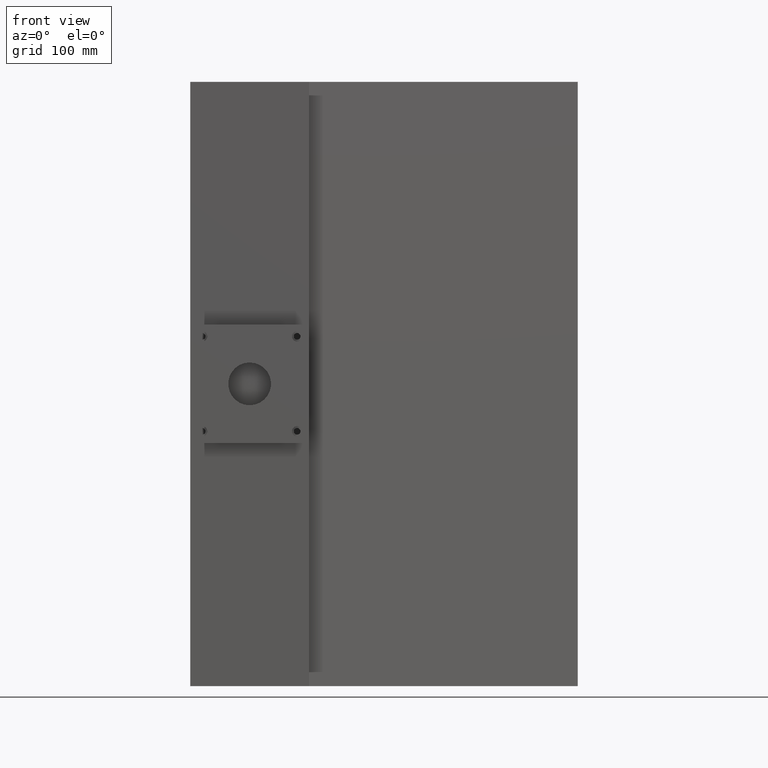
[diagram: clean part render]
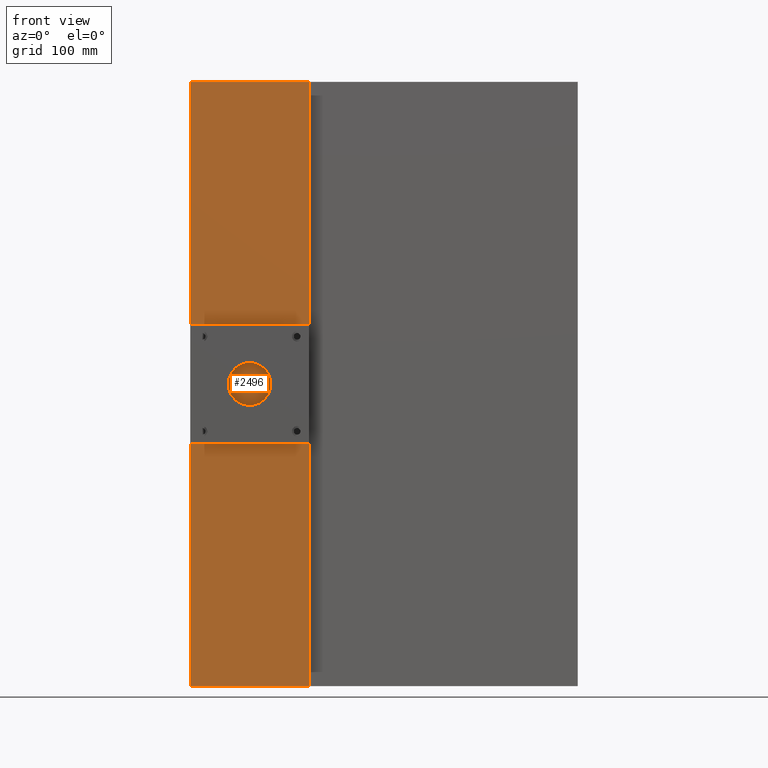
[diagram: same view with one face highlighted and labeled with its STEP entity id]
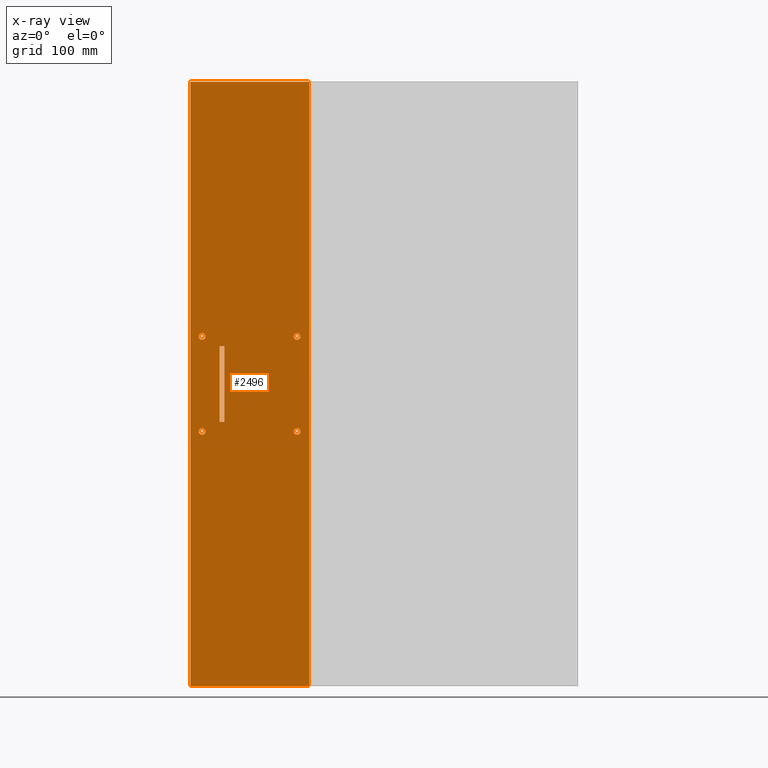
[diagram: x-ray of the same camera — body ghosted, the highlighted face saturated]
A machine part, front view. The second image highlights one B-rep face of the part: STEP entity #2496.
The next image is the same camera in x-ray: the body ghosted, the highlighted face saturated — about 0% of this face is hidden behind the body in this view.
In plain terms, the highlighted planar face has unit normal (0, 1, -0).
Its self-contained STEP definition (entity closure, byte-faithful):
#6 = AXIS2_PLACEMENT_3D ( 'NONE', #1612, #1376, #637 ) ;
#17 = DIRECTION ( 'NONE',  ( -1.000000000000000000, 0.0000000000000000000, 0.0000000000000000000 ) ) ;
#73 = DIRECTION ( 'NONE',  ( 3.118604001756058900E-016, -1.000000000000000000, 0.0000000000000000000 ) ) ;
#80 = ORIENTED_EDGE ( 'NONE', *, *, #2416, .T. ) ;
#114 = FACE_OUTER_BOUND ( 'NONE', #1962, .T. ) ;
#133 = FACE_BOUND ( 'NONE', #1892, .T. ) ;
#139 = FACE_BOUND ( 'NONE', #1931, .T. ) ;
#143 = VECTOR ( 'NONE', #316, 1000.000000000000000 ) ;
#147 = FACE_BOUND ( 'NONE', #2211, .T. ) ;
#179 = LINE ( 'NONE', #180, #143 ) ;
#180 = CARTESIAN_POINT ( 'NONE',  ( 210.6021135167758300, -109.9999999999999900, 39.99999999999997900 ) ) ;
#197 = ORIENTED_EDGE ( 'NONE', *, *, #2592, .T. ) ;
#254 = AXIS2_PLACEMENT_3D ( 'NONE', #539, #73, #571 ) ;
#258 = CARTESIAN_POINT ( 'NONE',  ( 20.88361753920343500, -110.0000000000000000, -318.0000000000000000 ) ) ;
#315 = VERTEX_POINT ( 'NONE', #1596 ) ;
#316 = DIRECTION ( 'NONE',  ( -1.000000000000000000, -0.0000000000000000000, -0.0000000000000000000 ) ) ;
#331 = PLANE ( 'NONE',  #810 ) ;
#339 = AXIS2_PLACEMENT_3D ( 'NONE', #428, #488, #448 ) ;
#350 = AXIS2_PLACEMENT_3D ( 'NONE', #504, #2365, #17 ) ;
#361 = LINE ( 'NONE', #983, #395 ) ;
#384 = AXIS2_PLACEMENT_3D ( 'NONE', #1968, #535, #569 ) ;
#395 = VECTOR ( 'NONE', #1828, 1000.000000000000000 ) ;
#428 = CARTESIAN_POINT ( 'NONE',  ( 8.383617539203399400, -110.0000000000000000, 50.00000000000004300 ) ) ;
#448 = DIRECTION ( 'NONE',  ( 1.000000000000000000, 0.0000000000000000000, 0.0000000000000000000 ) ) ;
#453 = VERTEX_POINT ( 'NONE', #1948 ) ;
#470 = CARTESIAN_POINT ( 'NONE',  ( -95.11638246079657200, -110.0000000000000300, 50.00000000000004300 ) ) ;
#477 = DIRECTION ( 'NONE',  ( 0.0000000000000000000, 1.000000000000000000, -0.0000000000000000000 ) ) ;
#479 = DIRECTION ( 'NONE',  ( -0.0000000000000000000, -0.0000000000000000000, -1.000000000000000000 ) ) ;
#488 = DIRECTION ( 'NONE',  ( 3.118604001756058900E-016, -1.000000000000000000, 0.0000000000000000000 ) ) ;
#497 = DIRECTION ( 'NONE',  ( 3.118604001756058900E-016, -1.000000000000000000, -0.0000000000000000000 ) ) ;
#504 = CARTESIAN_POINT ( 'NONE',  ( 8.383617539203399400, -110.0000000000000000, -50.00000000000004300 ) ) ;
#514 = CARTESIAN_POINT ( 'NONE',  ( 20.88361753920343500, -110.0000000000000000, 318.0000000000000000 ) ) ;
#522 = ORIENTED_EDGE ( 'NONE', *, *, #1652, .F. ) ;
#534 = DIRECTION ( 'NONE',  ( 1.000000000000000000, -4.476705744456276300E-016, -0.0000000000000000000 ) ) ;
#535 = DIRECTION ( 'NONE',  ( 3.118604001756058900E-016, -1.000000000000000000, -0.0000000000000000000 ) ) ;
#539 = CARTESIAN_POINT ( 'NONE',  ( 8.383617539203399400, -110.0000000000000000, 50.00000000000004300 ) ) ;
#554 = CARTESIAN_POINT ( 'NONE',  ( -104.1163824607965600, -110.0000000000000000, 318.0000000000000000 ) ) ;
#569 = DIRECTION ( 'NONE',  ( -1.000000000000000000, 0.0000000000000000000, 0.0000000000000000000 ) ) ;
#571 = DIRECTION ( 'NONE',  ( 1.000000000000000000, 0.0000000000000000000, 0.0000000000000000000 ) ) ;
#602 = VERTEX_POINT ( 'NONE', #2920 ) ;
#609 = AXIS2_PLACEMENT_3D ( 'NONE', #2255, #497, #2804 ) ;
#615 = VERTEX_POINT ( 'NONE', #2421 ) ;
#637 = DIRECTION ( 'NONE',  ( 1.000000000000000000, 0.0000000000000000000, 0.0000000000000000000 ) ) ;
#653 = VERTEX_POINT ( 'NONE', #2558 ) ;
#663 = VERTEX_POINT ( 'NONE', #258 ) ;
#665 = VERTEX_POINT ( 'NONE', #668 ) ;
#668 = CARTESIAN_POINT ( 'NONE',  ( -88.11638246079655800, -110.0000000000000300, 50.00000000000004300 ) ) ;
#671 = ORIENTED_EDGE ( 'NONE', *, *, #2158, .T. ) ;
#677 = LINE ( 'NONE', #2166, #2444 ) ;
#683 = CARTESIAN_POINT ( 'NONE',  ( 20.88361753920343500, -110.0000000000000000, 318.0000000000000000 ) ) ;
#691 = ORIENTED_EDGE ( 'NONE', *, *, #1695, .F. ) ;
#714 = AXIS2_PLACEMENT_3D ( 'NONE', #756, #752, #1059 ) ;
#725 = ORIENTED_EDGE ( 'NONE', *, *, #2491, .F. ) ;
#732 = ORIENTED_EDGE ( 'NONE', *, *, #1252, .F. ) ;
#739 = EDGE_LOOP ( 'NONE', ( #1690, #732 ) ) ;
#752 = DIRECTION ( 'NONE',  ( 3.118604001756058900E-016, -1.000000000000000000, -0.0000000000000000000 ) ) ;
#756 = CARTESIAN_POINT ( 'NONE',  ( -91.61638246079655800, -110.0000000000000300, -50.00000000000004300 ) ) ;
#772 = CARTESIAN_POINT ( 'NONE',  ( -73.11638246079655800, -110.0000000000000100, 318.0000000000000000 ) ) ;
#795 = CIRCLE ( 'NONE', #384, 3.500000000000008400 ) ;
#802 = VERTEX_POINT ( 'NONE', #554 ) ;
#810 = AXIS2_PLACEMENT_3D ( 'NONE', #683, #477, #1081 ) ;
#853 = VERTEX_POINT ( 'NONE', #1012 ) ;
#884 = CARTESIAN_POINT ( 'NONE',  ( 20.88361753920343500, -110.0000000000000000, 318.0000000000000000 ) ) ;
#913 = CARTESIAN_POINT ( 'NONE',  ( -104.1163824607965600, -110.0000000000000000, 318.0000000000000000 ) ) ;
#959 = DIRECTION ( 'NONE',  ( 1.000000000000000000, 0.0000000000000000000, 0.0000000000000000000 ) ) ;
#977 = ORIENTED_EDGE ( 'NONE', *, *, #2181, .F. ) ;
#983 = CARTESIAN_POINT ( 'NONE',  ( -68.11638246079655800, -110.0000000000000000, 318.0000000000000000 ) ) ;
#1012 = CARTESIAN_POINT ( 'NONE',  ( 4.883617539203392300, -110.0000000000000000, 50.00000000000004300 ) ) ;
#1059 = DIRECTION ( 'NONE',  ( -1.000000000000000000, 0.0000000000000000000, 0.0000000000000000000 ) ) ;
#1081 = DIRECTION ( 'NONE',  ( 0.0000000000000000000, 0.0000000000000000000, 1.000000000000000000 ) ) ;
#1181 = ORIENTED_EDGE ( 'NONE', *, *, #1754, .F. ) ;
#1192 = FACE_BOUND ( 'NONE', #739, .T. ) ;
#1195 = CIRCLE ( 'NONE', #6, 3.500000000000003100 ) ;
#1252 = EDGE_CURVE ( 'NONE', #653, #453, #1609, .T. ) ;
#1269 = VERTEX_POINT ( 'NONE', #884 ) ;
#1279 = EDGE_CURVE ( 'NONE', #453, #653, #2283, .T. ) ;
#1310 = CARTESIAN_POINT ( 'NONE',  ( 11.88361753920340800, -110.0000000000000000, 50.00000000000004300 ) ) ;
#1376 = DIRECTION ( 'NONE',  ( 3.118604001756058900E-016, -1.000000000000000000, 0.0000000000000000000 ) ) ;
#1385 = VECTOR ( 'NONE', #2807, 1000.000000000000000 ) ;
#1472 = ORIENTED_EDGE ( 'NONE', *, *, #2777, .F. ) ;
#1477 = VERTEX_POINT ( 'NONE', #1915 ) ;
#1482 = VECTOR ( 'NONE', #2632, 1000.000000000000000 ) ;
#1508 = VERTEX_POINT ( 'NONE', #1537 ) ;
#1537 = CARTESIAN_POINT ( 'NONE',  ( -68.11638246079654400, -109.9999999999999900, -39.99999999999997900 ) ) ;
#1596 = CARTESIAN_POINT ( 'NONE',  ( 4.883617539203392300, -110.0000000000000000, -50.00000000000004300 ) ) ;
#1609 = CIRCLE ( 'NONE', #714, 3.500000000000003100 ) ;
#1612 = CARTESIAN_POINT ( 'NONE',  ( -91.61638246079655800, -110.0000000000000300, 50.00000000000004300 ) ) ;
#1652 = EDGE_CURVE ( 'NONE', #315, #2791, #795, .T. ) ;
#1690 = ORIENTED_EDGE ( 'NONE', *, *, #1279, .F. ) ;
#1693 = ORIENTED_EDGE ( 'NONE', *, *, #2815, .F. ) ;
#1695 = EDGE_CURVE ( 'NONE', #2791, #315, #2862, .T. ) ;
#1726 = EDGE_CURVE ( 'NONE', #853, #2423, #2348, .T. ) ;
#1731 = EDGE_CURVE ( 'NONE', #1269, #663, #2786, .T. ) ;
#1754 = EDGE_CURVE ( 'NONE', #802, #1269, #2703, .T. ) ;
#1789 = EDGE_CURVE ( 'NONE', #802, #602, #2563, .T. ) ;
#1828 = DIRECTION ( 'NONE',  ( -0.0000000000000000000, -0.0000000000000000000, -1.000000000000000000 ) ) ;
#1849 = LINE ( 'NONE', #1993, #1385 ) ;
#1890 = EDGE_CURVE ( 'NONE', #2423, #853, #2148, .T. ) ;
#1892 = EDGE_LOOP ( 'NONE', ( #2096, #2637 ) ) ;
#1915 = CARTESIAN_POINT ( 'NONE',  ( -73.11638246079655800, -110.0000000000000100, 40.00000000000009200 ) ) ;
#1931 = EDGE_LOOP ( 'NONE', ( #977, #1693 ) ) ;
#1948 = CARTESIAN_POINT ( 'NONE',  ( -88.11638246079655800, -110.0000000000000300, -50.00000000000004300 ) ) ;
#1962 = EDGE_LOOP ( 'NONE', ( #2501, #197, #2583, #1181 ) ) ;
#1968 = CARTESIAN_POINT ( 'NONE',  ( 8.383617539203399400, -110.0000000000000000, -50.00000000000004300 ) ) ;
#1993 = CARTESIAN_POINT ( 'NONE',  ( 210.6021135167758300, -109.9999999999999900, -39.99999999999997900 ) ) ;
#2013 = EDGE_LOOP ( 'NONE', ( #671, #1472, #725, #80 ) ) ;
#2024 = LINE ( 'NONE', #2652, #1482 ) ;
#2096 = ORIENTED_EDGE ( 'NONE', *, *, #1890, .F. ) ;
#2109 = CARTESIAN_POINT ( 'NONE',  ( -68.11638246079655800, -110.0000000000000000, 40.00000000000003600 ) ) ;
#2148 = CIRCLE ( 'NONE', #254, 3.500000000000008400 ) ;
#2158 = EDGE_CURVE ( 'NONE', #1508, #615, #1849, .T. ) ;
#2166 = CARTESIAN_POINT ( 'NONE',  ( 20.88361753920343500, -110.0000000000000000, -318.0000000000000000 ) ) ;
#2177 = DIRECTION ( 'NONE',  ( 1.000000000000000000, -0.0000000000000000000, -0.0000000000000000000 ) ) ;
#2181 = EDGE_CURVE ( 'NONE', #665, #2245, #1195, .T. ) ;
#2211 = EDGE_LOOP ( 'NONE', ( #691, #522 ) ) ;
#2245 = VERTEX_POINT ( 'NONE', #470 ) ;
#2255 = CARTESIAN_POINT ( 'NONE',  ( -91.61638246079655800, -110.0000000000000300, -50.00000000000004300 ) ) ;
#2283 = CIRCLE ( 'NONE', #609, 3.500000000000003100 ) ;
#2331 = VERTEX_POINT ( 'NONE', #2109 ) ;
#2342 = CIRCLE ( 'NONE', #2373, 3.500000000000003100 ) ;
#2348 = CIRCLE ( 'NONE', #339, 3.500000000000008400 ) ;
#2365 = DIRECTION ( 'NONE',  ( 3.118604001756058900E-016, -1.000000000000000000, -0.0000000000000000000 ) ) ;
#2373 = AXIS2_PLACEMENT_3D ( 'NONE', #2449, #2443, #959 ) ;
#2416 = EDGE_CURVE ( 'NONE', #2331, #1508, #361, .T. ) ;
#2421 = CARTESIAN_POINT ( 'NONE',  ( -73.11638246079655800, -109.9999999999999900, -39.99999999999997900 ) ) ;
#2423 = VERTEX_POINT ( 'NONE', #1310 ) ;
#2443 = DIRECTION ( 'NONE',  ( 3.118604001756058900E-016, -1.000000000000000000, 0.0000000000000000000 ) ) ;
#2444 = VECTOR ( 'NONE', #2177, 1000.000000000000000 ) ;
#2449 = CARTESIAN_POINT ( 'NONE',  ( -91.61638246079655800, -110.0000000000000300, 50.00000000000004300 ) ) ;
#2491 = EDGE_CURVE ( 'NONE', #2331, #1477, #179, .T. ) ;
#2495 = DIRECTION ( 'NONE',  ( -0.0000000000000000000, -0.0000000000000000000, -1.000000000000000000 ) ) ;
#2496 = ADVANCED_FACE ( 'NONE', ( #133, #1192, #147, #139, #114, #2681 ), #331, .F. ) ;
#2501 = ORIENTED_EDGE ( 'NONE', *, *, #1789, .T. ) ;
#2550 = VECTOR ( 'NONE', #2495, 1000.000000000000000 ) ;
#2558 = CARTESIAN_POINT ( 'NONE',  ( -95.11638246079657200, -110.0000000000000300, -50.00000000000004300 ) ) ;
#2563 = LINE ( 'NONE', #913, #2550 ) ;
#2576 = CARTESIAN_POINT ( 'NONE',  ( 11.88361753920340800, -110.0000000000000000, -50.00000000000004300 ) ) ;
#2583 = ORIENTED_EDGE ( 'NONE', *, *, #1731, .F. ) ;
#2592 = EDGE_CURVE ( 'NONE', #602, #663, #677, .T. ) ;
#2632 = DIRECTION ( 'NONE',  ( -0.0000000000000000000, -0.0000000000000000000, -1.000000000000000000 ) ) ;
#2637 = ORIENTED_EDGE ( 'NONE', *, *, #1726, .F. ) ;
#2652 = CARTESIAN_POINT ( 'NONE',  ( -73.11638246079655800, -110.0000000000000100, 318.0000000000000000 ) ) ;
#2681 = FACE_BOUND ( 'NONE', #2013, .T. ) ;
#2703 = LINE ( 'NONE', #772, #2752 ) ;
#2748 = VECTOR ( 'NONE', #479, 1000.000000000000000 ) ;
#2752 = VECTOR ( 'NONE', #534, 1000.000000000000000 ) ;
#2777 = EDGE_CURVE ( 'NONE', #1477, #615, #2024, .T. ) ;
#2786 = LINE ( 'NONE', #514, #2748 ) ;
#2791 = VERTEX_POINT ( 'NONE', #2576 ) ;
#2804 = DIRECTION ( 'NONE',  ( -1.000000000000000000, 0.0000000000000000000, 0.0000000000000000000 ) ) ;
#2807 = DIRECTION ( 'NONE',  ( -1.000000000000000000, -0.0000000000000000000, -0.0000000000000000000 ) ) ;
#2815 = EDGE_CURVE ( 'NONE', #2245, #665, #2342, .T. ) ;
#2862 = CIRCLE ( 'NONE', #350, 3.500000000000008400 ) ;
#2920 = CARTESIAN_POINT ( 'NONE',  ( -104.1163824607965600, -110.0000000000000000, -318.0000000000000000 ) ) ;